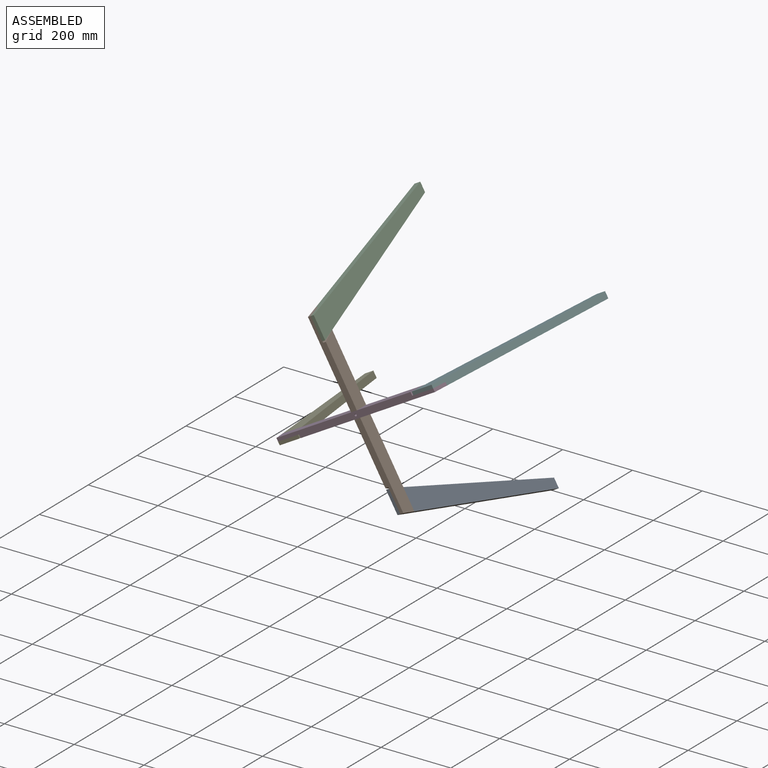
[diagram: assembled view]
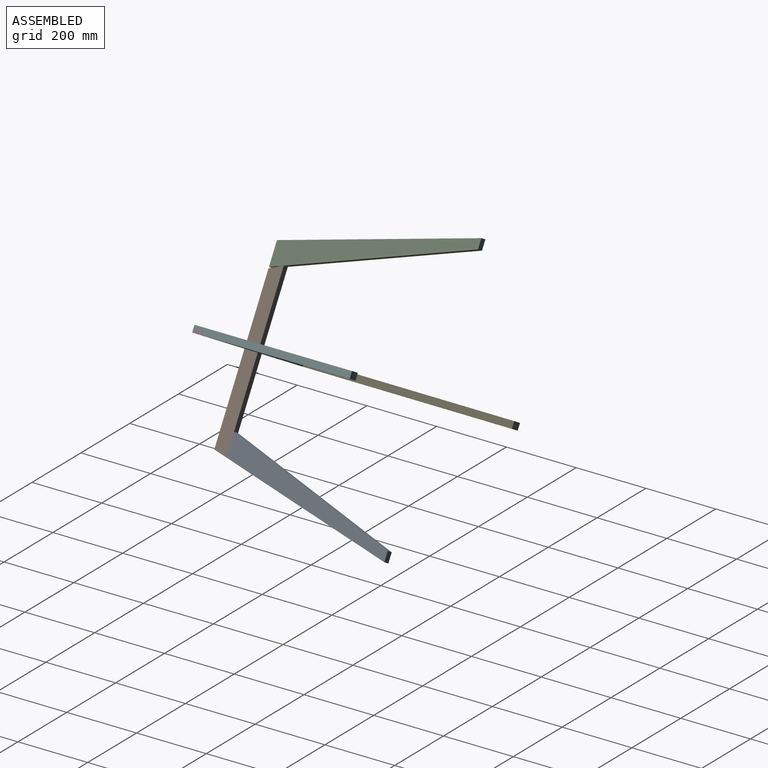
[diagram: assembled view, second angle]
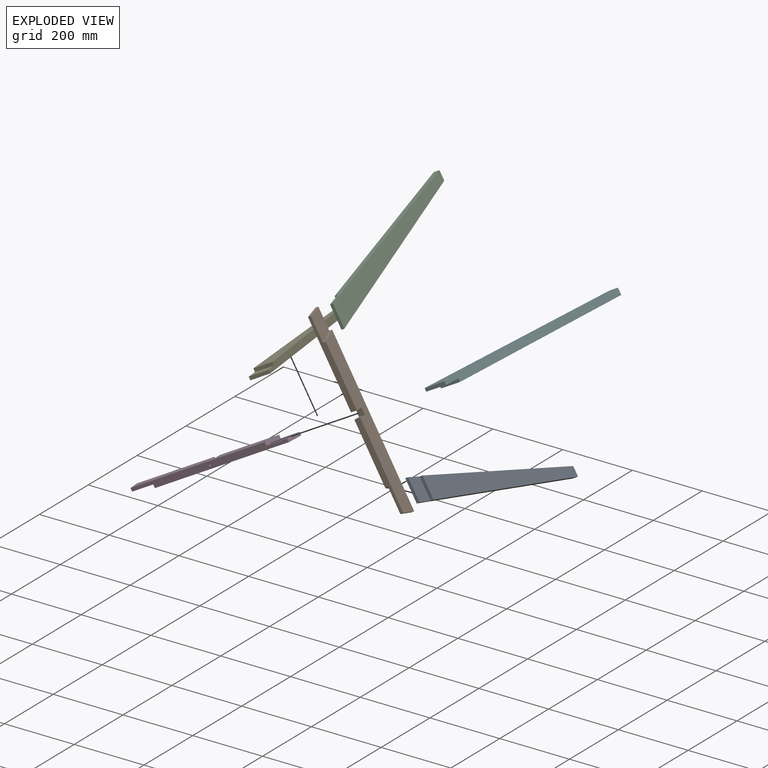
[diagram: exploded view]
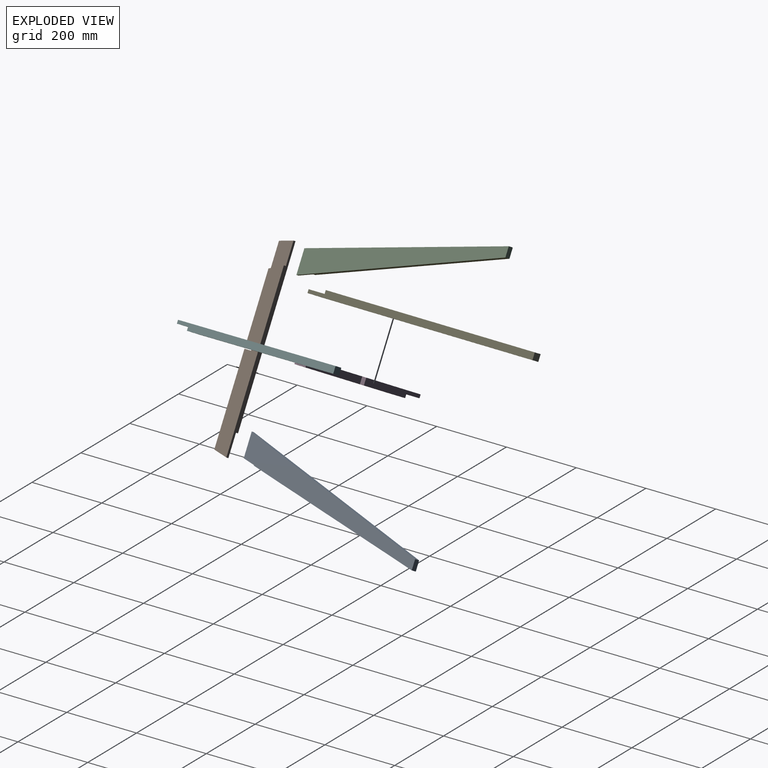
[diagram: exploded view, second angle]
ASSEMBLY  parts=6 mates=15
PART A: 8 faces, bbox 571.5x19.1x63.5 mm
  f0: plane 531.43x60.88mm, normal (0,-1,0), area 22559.4mm2, adj f1,f3,f4,f7
  f1: plane 554.87x19.05mm, normal (0,0,1), area 10195.1mm2, adj f0,f2,f3,f5,f6,f7
  f2: plane 571.5x63.5mm, normal (0,1,0), area 25008.8mm2, adj f1,f3,f4,f5
  f3: plane 26.64x19.05mm, normal (-0.97,0,-0.25), area 524.7mm2, adj f0,f1,f2,f4
  f4: plane 564.52x36.86mm, normal (-0.07,0,-1), area 10394.6mm2, adj f0,f2,f3,f5,f6,f7
  f5: plane 63.5x16.63mm, normal (0.97,0,0.25), area 625.2mm2, adj f1,f2,f4,f6
  f6: plane 63.5x56.01mm, normal (0,-1,0), area 2449.4mm2, adj f1,f4,f5,f7
  f7: plane 60.88x15.94mm, normal (0.97,0,0.25), area 599.5mm2, adj f0,f1,f4,f6
PART B: 14 faces, bbox 533.4x38.1x19.1 mm
  f0: plane 247.2x19.05mm, normal (0,1,0), area 4046.6mm2, adj f1,f2,f4,f9,f10,f13
  f1: plane 471.04x38.1mm, normal (0,0,1), area 17066.6mm2, adj f0,f3,f6,f7,f10,f11,f12,f13
  f2: plane 471.04x38.1mm, normal (0,0,-1), area 17066.6mm2, adj f0,f4,f6,f7,f8,f10,f11,f12
  f3: plane 38.1x9.98mm, normal (-0.97,0.25,0), area 375.1mm2, adj f1,f5,f6,f7
  f4: plane 38.1x9.98mm, normal (0.97,0.25,0), area 375.1mm2, adj f0,f2,f6,f9
  f5: plane 79.53x38.1mm, normal (0,0,-1), area 2512.9mm2, adj f3,f6,f7,f8
  f6: plane 533.4x19.05mm, normal (0,-1,0), area 8973.3mm2, adj f1,f2,f3,f4,f5,f8,f9,f13
  f7: plane 247.2x19.05mm, normal (0,1,0), area 4046.6mm2, adj f1,f2,f3,f5,f8,f11
  f8: plane 38.1x17.17mm, normal (-0.91,0.41,0), area 398.1mm2, adj f2,f5,f6,f7
  f9: plane 79.53x38.1mm, normal (0,0,1), area 2512.9mm2, adj f0,f4,f6,f13
  f10: plane 19.05x19.05mm, normal (-1,0,0), area 362.9mm2, adj f0,f1,f2,f12
  f11: plane 19.05x19.05mm, normal (1,0,0), area 362.9mm2, adj f1,f2,f7,f12
  f12: plane 19.05x19.05mm, normal (0,1,0), area 362.9mm2, adj f1,f2,f10,f11
  f13: plane 38.1x17.17mm, normal (0.91,0.41,0), area 398.1mm2, adj f0,f1,f6,f9
PART C: same geometry as A
PART D: 15 faces, bbox 533.4x38.1x19.1 mm
  f0: plane 471.04x38.1mm, normal (0,0,-1), area 17066.6mm2, adj f1,f3,f5,f6,f10,f11,f12,f13
  f1: plane 257.18x19.05mm, normal (0,-1,0), area 4305.2mm2, adj f0,f4,f7,f9,f11,f13
  f2: cylinder r=3.17mm len=19.05mm, axis (0,1,0), area 380mm2, adj f3,f10
  f3: plane 513.45x19.05mm, normal (0,1,0), area 8424.5mm2, adj f0,f2,f4,f6,f7,f8,f9,f13
  f4: plane 471.04x38.1mm, normal (0,0,1), area 17066.6mm2, adj f1,f3,f5,f7,f10,f11,f12,f14
  f5: plane 257.18x19.05mm, normal (0,-1,0), area 4305.2mm2, adj f0,f4,f6,f8,f12,f14
  f6: plane 38.1x9.98mm, normal (-0.97,0.25,0), area 375.1mm2, adj f0,f3,f5,f8
  f7: plane 38.1x9.98mm, normal (0.97,0.25,0), area 375.1mm2, adj f1,f3,f4,f9
  f8: plane 79.53x38.1mm, normal (0,0,1), area 2512.9mm2, adj f3,f5,f6,f14
  f9: plane 79.53x38.1mm, normal (0,0,-1), area 2512.9mm2, adj f1,f3,f7,f13
  f10: plane 19.05x19.05mm, normal (0,-1,0), area 331.2mm2, adj f0,f2,f4,f11,f12
  f11: plane 19.05x19.05mm, normal (-1,0,0), area 362.9mm2, adj f0,f1,f4,f10
  f12: plane 19.05x19.05mm, normal (1,0,0), area 362.9mm2, adj f0,f4,f5,f10
  f13: plane 38.1x17.17mm, normal (0.91,0.41,0), area 398.1mm2, adj f0,f1,f3,f9
  f14: plane 38.1x17.17mm, normal (-0.91,0.41,0), area 398.1mm2, adj f3,f4,f5,f8
PART E: 8 faces, bbox 571.5x19.1x63.5 mm
  f0: plane 63.5x16.63mm, normal (0.97,0,0.25), area 625.2mm2, adj f1,f3,f4,f6
  f1: plane 554.87x19.05mm, normal (0,0,1), area 10195.1mm2, adj f0,f2,f4,f5,f6,f7
  f2: plane 531.43x60.88mm, normal (0,1,0), area 22559.4mm2, adj f1,f3,f5,f7
  f3: plane 564.52x36.86mm, normal (-0.07,0,-1), area 10394.6mm2, adj f0,f2,f4,f5,f6,f7
  f4: plane 571.5x63.5mm, normal (0,-1,0), area 25008.8mm2, adj f0,f1,f3,f5
  f5: plane 26.64x19.05mm, normal (-0.97,0,-0.25), area 524.7mm2, adj f1,f2,f3,f4
  f6: plane 63.5x56.01mm, normal (0,1,0), area 2449.4mm2, adj f0,f1,f3,f7
  f7: plane 60.88x15.94mm, normal (0.97,0,0.25), area 599.5mm2, adj f1,f2,f3,f6
PART F: same geometry as E
PLACE A rot(axis=(-0.66,0.7,-0.27),169.2deg) t=(767.27,239.62,-445.37)mm
PLACE B rot(axis=(0.87,0,-0.5),180deg) t=(780.47,-74.33,-430.13)mm
PLACE C rot(axis=(0.38,-0.13,-0.92),91deg) t=(510.47,239.62,37.52)mm
PLACE D rot(axis=(0.97,0,0.26),180deg) t=(865.08,-74.33,-62.32)mm fixed
PLACE E rot(axis=(0.72,-0.62,-0.3),129.2deg) t=(397.43,239.62,-332.32)mm
PLACE F rot(axis=(-0.33,0.52,-0.79),111.6deg) t=(880.31,239.62,-75.52)mm
MATE planar B.f1 <-> D.f12  axis (-0.87,0,-0.5) through (613.79,-54.88,-179.53)mm
MATE planar C.f5 <-> B.f7  axis (0,-1,0) through (531.04,-74.33,-7.64)mm
MATE planar E.f6 <-> D.f8  axis (-0.5,0,0.87) through (440.09,-55.41,-318.69)mm
MATE planar C.f1 <-> B.f3  axis (-0.48,-0.25,0.84) through (474.32,203.23,81.44)mm
MATE planar E.f0 <-> D.f2  axis (0,-1,0) through (447.35,-74.33,-320)mm
MATE planar A.f5 <-> B.f0  axis (0,-1,0) through (746.7,-74.33,-400.21)mm
MATE planar D.f7 <-> F.f1  axis (0.84,-0.25,0.48) through (867.9,-55.28,-77.19)mm
MATE planar D.f9 <-> F.f6  axis (-0.5,0,0.87) through (836.85,-55.62,-89.62)mm
MATE planar D.f2 <-> F.f0  axis (0,-1,0) through (638.87,-74.33,-203.92)mm
MATE planar D.f6 <-> E.f1  axis (-0.84,-0.25,-0.48) through (409.84,-55.28,-330.65)mm
MATE planar A.f1 <-> B.f4  axis (0.48,-0.25,-0.84) through (803.42,203.23,-489.29)mm
MATE planar B.f12 <-> D.f2  axis (0,-1,0) through (638.87,-55.28,-203.92)mm
MATE planar D.f4 <-> B.f10  axis (0.5,0,-0.87) through (672.78,-55.29,-195.34)mm
MATE planar A.f6 <-> B.f9  axis (0.87,0,0.5) through (753.63,-55.41,-402.7)mm
MATE planar B.f5 <-> C.f6  axis (0.87,0,0.5) through (524.57,-55.62,-5.94)mm
